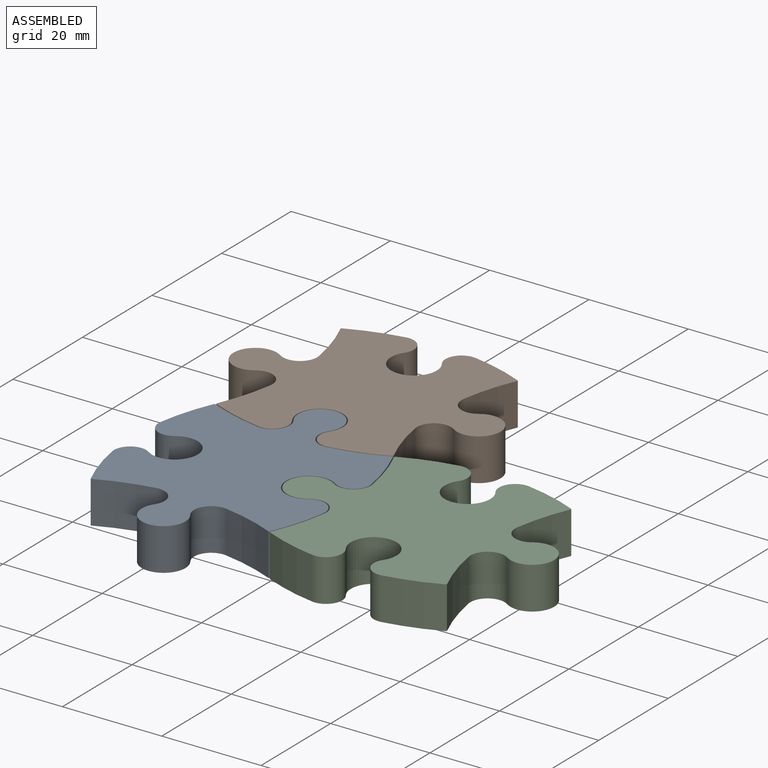
[diagram: assembled view]
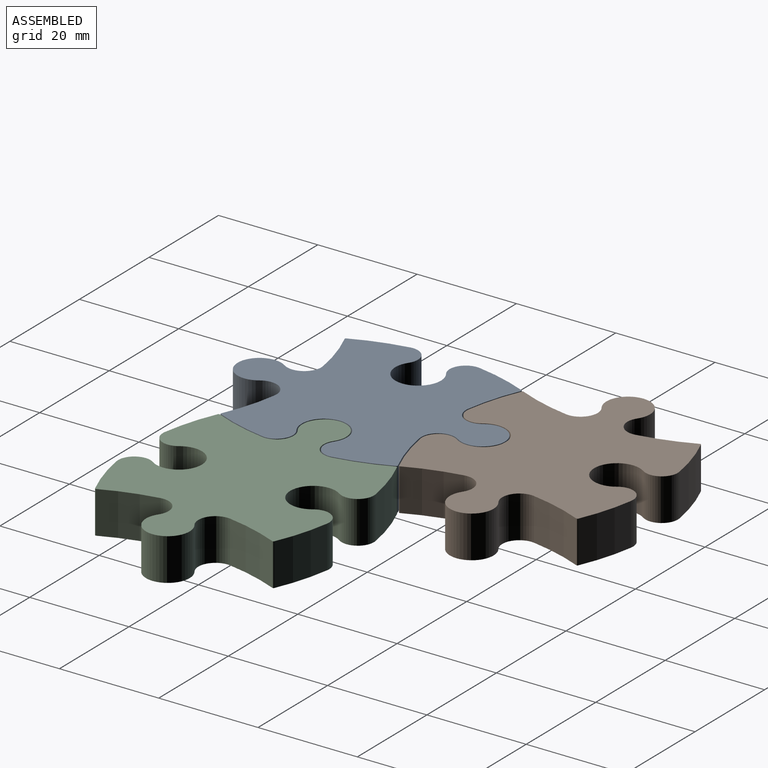
[diagram: assembled view, second angle]
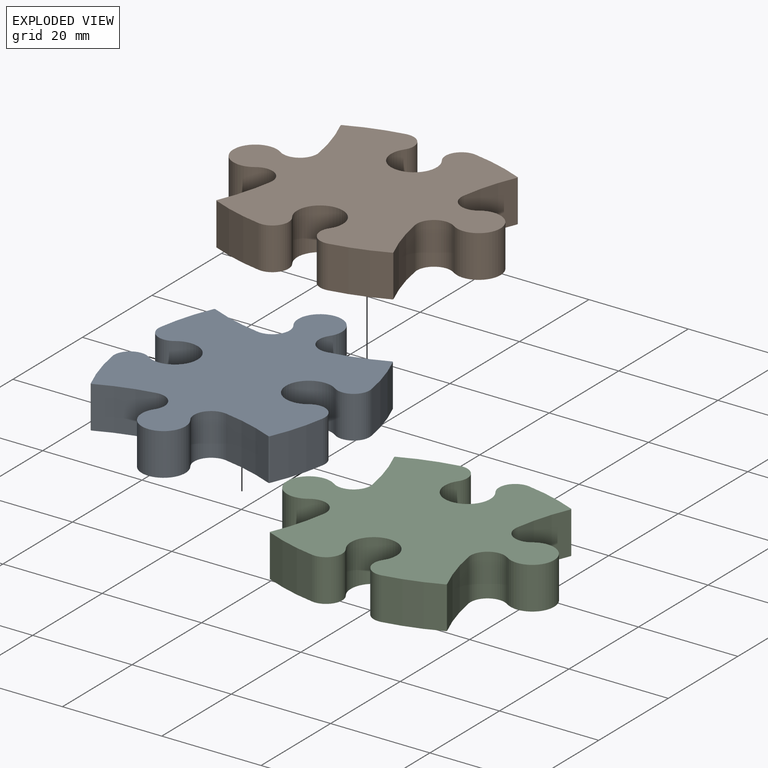
[diagram: exploded view]
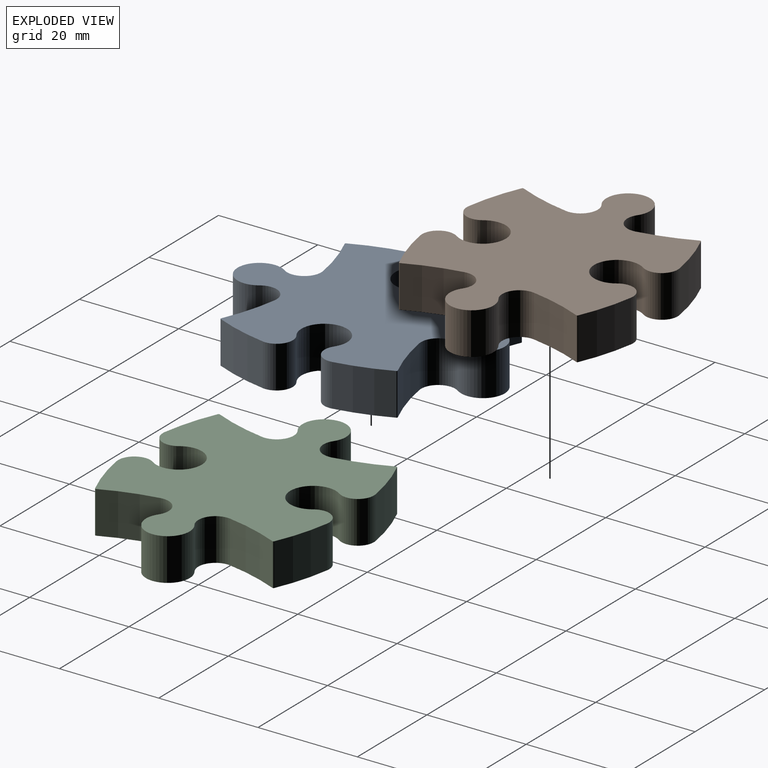
[diagram: exploded view, second angle]
ASSEMBLY  parts=3 mates=6
PART A: 26 faces, bbox 42.5x53.8x8.5 mm
  f0: plane 53.8x42.52mm, normal (0,0,-1), area 1272.6mm2, adj f1,f2,f3,f4,f5,f6,f7,f8
  f1: cylinder r=3.26mm len=8.5mm, axis (0,0,1), area 64.8mm2, adj f0,f2,f20,f21
  f2: cylinder r=4.6mm len=9.2mm, axis (0,0,1), area 170.5mm2, adj f0,f1,f3,f21
  f3: cylinder r=3.26mm len=8.5mm, axis (0,0,1), area 64.8mm2, adj f0,f2,f4,f21
  f4: cylinder r=43.65mm len=10.72mm, axis (0,0,1), area 95.3mm2, adj f0,f3,f21,f22
  f5: cylinder r=43.85mm len=10.78mm, axis (0,0,1), area 95.8mm2, adj f0,f6,f21,f22
  f6: cylinder r=3.46mm len=8.5mm, axis (0,0,1), area 68.8mm2, adj f0,f5,f7,f21
  f7: cylinder r=4.4mm len=8.8mm, axis (0,0,1), area 163.1mm2, adj f0,f6,f8,f21
  f8: cylinder r=3.46mm len=8.5mm, axis (0,0,1), area 68.8mm2, adj f0,f7,f9,f21
  f9: cylinder r=43.85mm len=10.78mm, axis (0,0,1), area 95.8mm2, adj f0,f8,f21,f23
  f10: cylinder r=43.65mm len=10.72mm, axis (0,0,1), area 95.3mm2, adj f0,f11,f21,f23
  f11: cylinder r=3.26mm len=8.5mm, axis (0,0,1), area 64.8mm2, adj f0,f10,f12,f21
  f12: cylinder r=4.6mm len=9.2mm, axis (0,0,1), area 170.5mm2, adj f0,f11,f13,f21
  f13: cylinder r=3.26mm len=8.5mm, axis (0,0,1), area 64.8mm2, adj f0,f12,f14,f21
  f14: cylinder r=43.65mm len=10.72mm, axis (0,0,1), area 95.3mm2, adj f0,f13,f21,f24
  f15: cylinder r=43.85mm len=10.78mm, axis (0,0,1), area 95.8mm2, adj f0,f16,f21,f24
  f16: cylinder r=3.46mm len=8.5mm, axis (0,0,1), area 68.8mm2, adj f0,f15,f17,f21
  f17: cylinder r=4.4mm len=8.8mm, axis (0,0,1), area 163.1mm2, adj f0,f16,f18,f21
  f18: cylinder r=3.46mm len=8.5mm, axis (0,0,1), area 68.8mm2, adj f0,f17,f19,f21
  f19: cylinder r=43.85mm len=10.78mm, axis (0,0,1), area 95.8mm2, adj f0,f18,f21,f25
  f20: cylinder r=43.65mm len=10.72mm, axis (0,0,1), area 95.3mm2, adj f0,f1,f21,f25
  f21: plane 53.8x42.52mm, normal (0,0,1), area 1272.6mm2, adj f1,f2,f3,f4,f5,f6,f7,f8
  f22: cylinder r=0.2mm len=8.5mm, axis (0,0,-1), area 2.7mm2, adj f0,f4,f5,f21
  f23: cylinder r=0.2mm len=8.5mm, axis (0,0,-1), area 2.7mm2, adj f0,f9,f10,f21
  f24: cylinder r=0.2mm len=8.5mm, axis (0,0,-1), area 2.7mm2, adj f0,f14,f15,f21
  f25: cylinder r=0.2mm len=8.5mm, axis (0,0,-1), area 2.7mm2, adj f0,f19,f20,f21
PART B: same geometry as A
PART C: same geometry as A
PLACE A t=(-4.7,0.96,0.51)mm fixed
PLACE B rot(axis=(0,0,-1),90deg) t=(9.22,79.39,0.51)mm
PLACE C rot(axis=(0,0,-1),90deg) t=(45.22,43.39,0.51)mm
MATE revolute B.f12 <-> A.f7  axis (0,0,1) through (23.47,37.71,9.01)mm
MATE revolute C.f17 <-> A.f12  axis (0,0,1) through (36.97,15.21,4.76)mm
MATE planar B.f21 <-> A.f21  axis (0,0,1) through (23.47,51.21,9.01)mm
MATE revolute A.f13 <-> C.f16  axis (0,0,1) through (41.47,8.77,9.01)mm
MATE planar C.f21 <-> A.f21  axis (0,0,1) through (59.47,15.21,9.01)mm
MATE revolute B.f11 <-> A.f8  axis (0,0,1) through (29.91,33.21,9.01)mm
